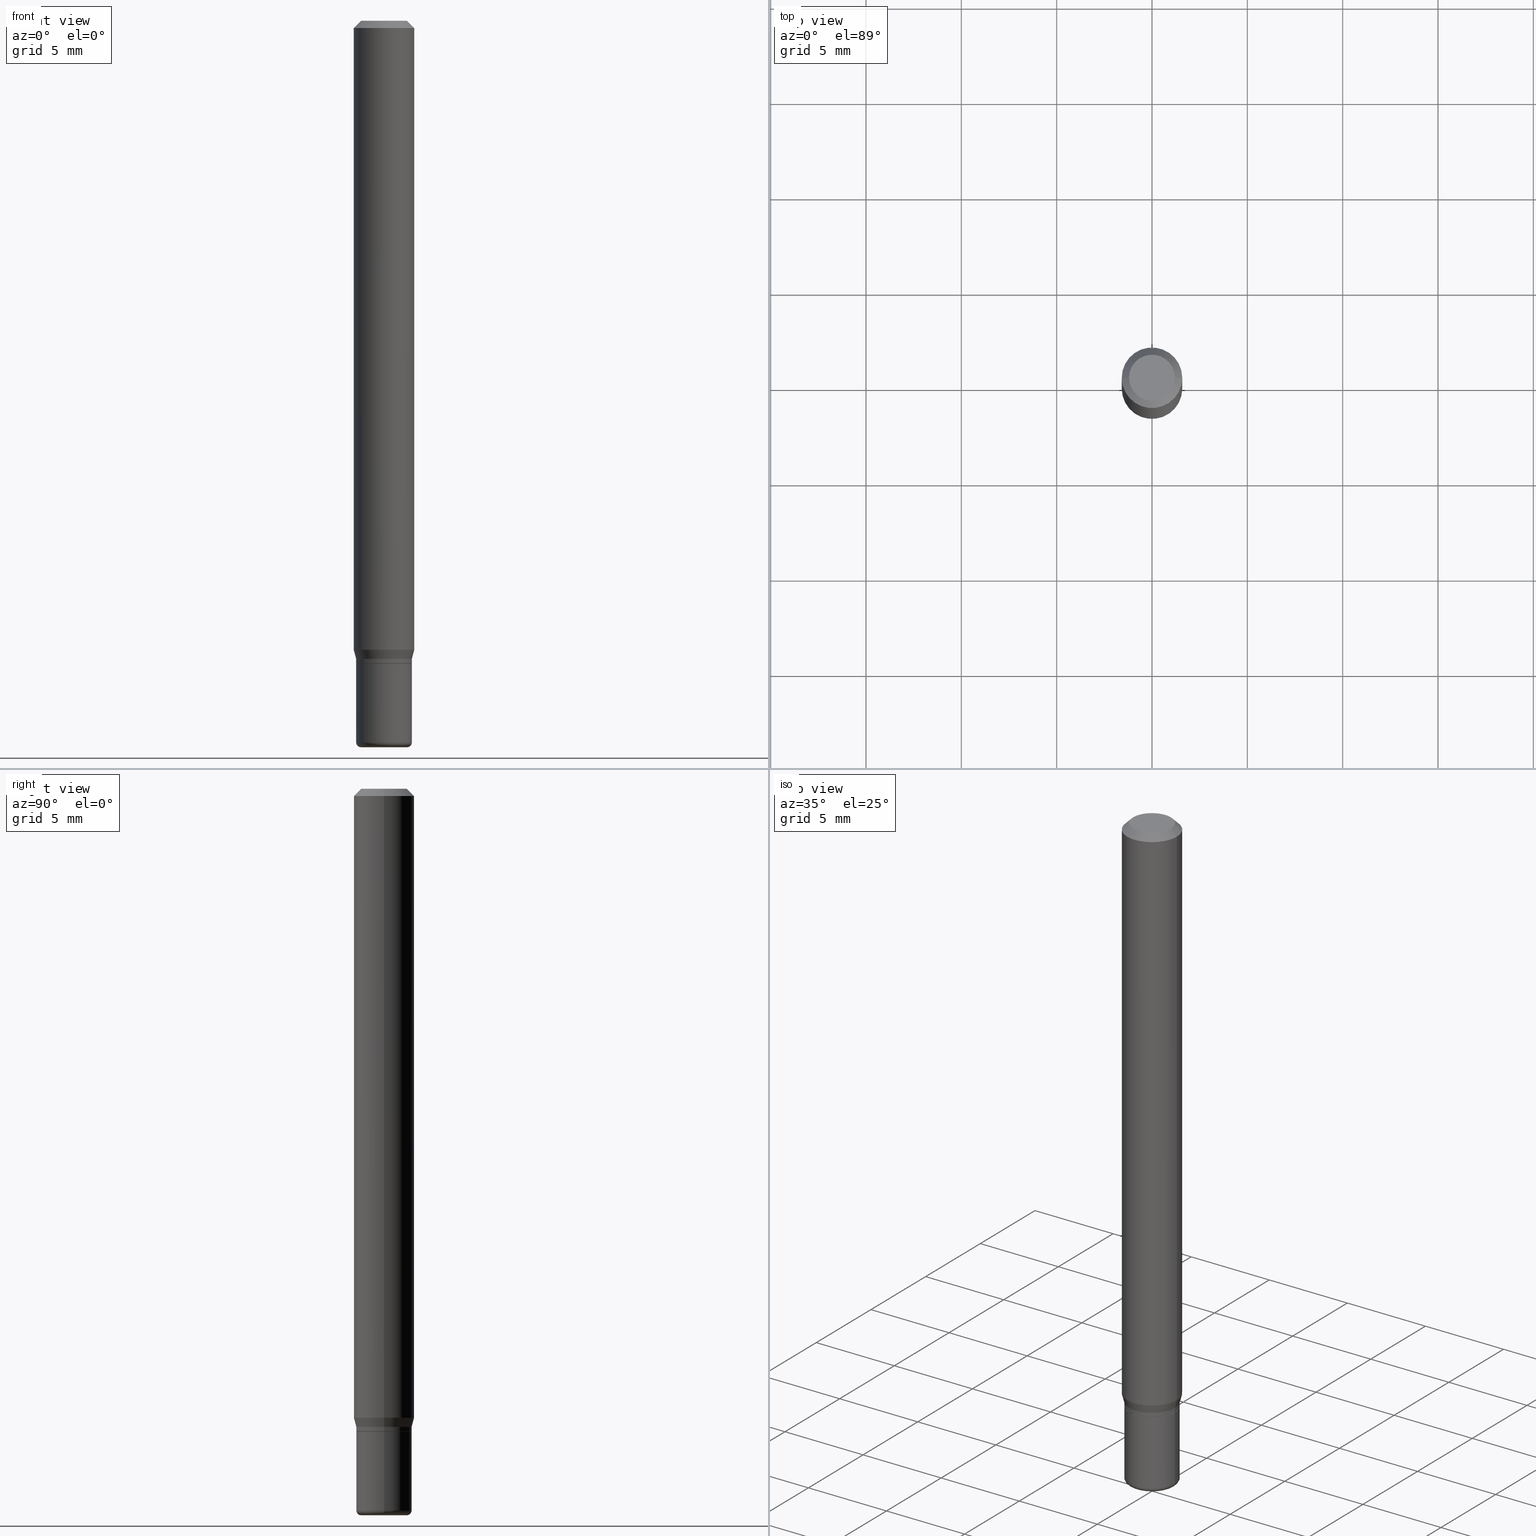
[diagram: canonical four-view strip — front | top / right | iso, engineering-drawing reading convention]
A machine part, canonical four-view strip (front | top / right | iso — engineering-drawing reading convention). The complete STEP part file that produces these views, byte-faithful:
ISO-10303-21;
HEADER;
FILE_DESCRIPTION (( 'STEP AP203' ),
    '1' );
FILE_NAME ('08623.STEP',
    '2024-02-29T20:02:24',
    ( '' ),
    ( '' ),
    'SwSTEP 2.0',
    'SolidWorks 2023',
    '' );
FILE_SCHEMA (( 'CONFIG_CONTROL_DESIGN' ));
ENDSEC;

DATA;
#1 = PERSON_AND_ORGANIZATION_ROLE ( 'design_owner' ) ;
#2 = ORIENTED_EDGE ( 'NONE', *, *, #140, .T. ) ;
#3 = VERTEX_POINT ( 'NONE', #512 ) ;
#4 = AXIS2_PLACEMENT_3D ( 'NONE', #78, #68, #231 ) ;
#5 = ADVANCED_FACE ( 'NONE', ( #477 ), #352, .T. ) ;
#6 = APPROVAL_STATUS ( 'not_yet_approved' ) ;
#7 = DIRECTION ( 'NONE',  ( 1.000000000000000000, -6.982962677686267499E-15, 4.876176775795935793E-29 ) ) ;
#8 = VERTEX_POINT ( 'NONE', #32 ) ;
#9 = LINE ( 'NONE', #213, #266 ) ;
#10 = CARTESIAN_POINT ( 'NONE',  ( 3.643748521215853910E-29, -5.202307194876288105E-15, -1.490000000000000213 ) ) ;
#11 = EDGE_CURVE ( 'NONE', #216, #417, #267, .T. ) ;
#12 = CIRCLE ( 'NONE', #255, 0.009999999999999944697 ) ;
#13 = CARTESIAN_POINT ( 'NONE',  ( 0.000000000000000000, 0.000000000000000000, 0.000000000000000000 ) ) ;
#14 = CYLINDRICAL_SURFACE ( 'NONE', #414, 0.05749999999999998168 ) ;
#15 = EDGE_LOOP ( 'NONE', ( #514, #148, #297, #413 ) ) ;
#16 = DIRECTION ( 'NONE',  ( -2.445468806185136597E-29, 3.491481338843145583E-15, 1.000000000000000000 ) ) ;
#17 = ORIENTED_EDGE ( 'NONE', *, *, #277, .T. ) ;
#18 = PRODUCT_DEFINITION_SHAPE ( 'NONE', 'NONE',  #74 ) ;
#19 = CARTESIAN_POINT ( 'NONE',  ( 3.246359840210769662E-29, -4.634941477314276569E-15, -1.327500000000000346 ) ) ;
#20 = DIRECTION ( 'NONE',  ( 1.000000000000000000, -6.982962677686262766E-15, 4.883557194083111780E-29 ) ) ;
#21 = DIRECTION ( 'NONE',  ( -2.445468806185136877E-29, 3.491481338843145188E-15, 1.000000000000000000 ) ) ;
#22 = VECTOR ( 'NONE', #114, 39.37007874015748143 ) ;
#23 = CARTESIAN_POINT ( 'NONE',  ( 0.04750000000000000749, -5.533997922066385616E-15, -1.490000000000000213 ) ) ;
#24 = EDGE_CURVE ( 'NONE', #37, #233, #169, .T. ) ;
#25 = CARTESIAN_POINT ( 'NONE',  ( -0.05699999999999997430, -4.229932117931019892E-15, -1.327500000000000346 ) ) ;
#26 = ORIENTED_EDGE ( 'NONE', *, *, #403, .F. ) ;
#27 = DIRECTION ( 'NONE',  ( -2.445468806185136597E-29, 3.491481338843145583E-15, 1.000000000000000000 ) ) ;
#28 = ORIENTED_EDGE ( 'NONE', *, *, #45, .F. ) ;
#29 = CARTESIAN_POINT ( 'NONE',  ( 0.05749999999999997474, -4.015203539669602175E-16, 2.803801646082662240E-30 ) ) ;
#30 = AXIS2_PLACEMENT_3D ( 'NONE', #92, #212, #56 ) ;
#31 = VECTOR ( 'NONE', #442, 39.37007874015748143 ) ;
#32 = CARTESIAN_POINT ( 'NONE',  ( 0.05749999999999997474, -5.034716090611815874E-15, -1.327000000000000401 ) ) ;
#33 = LOCAL_TIME ( 15, 2, 24.00000000000000000, #303 ) ;
#34 = AXIS2_PLACEMENT_3D ( 'NONE', #63, #222, #374 ) ;
#35 = DATE_AND_TIME ( #193, #248 ) ;
#36 = CARTESIAN_POINT ( 'NONE',  ( 0.000000000000000000, 0.000000000000000000, 0.000000000000000000 ) ) ;
#37 = VERTEX_POINT ( 'NONE', #312 ) ;
#38 = FACE_OUTER_BOUND ( 'NONE', #15, .T. ) ;
#39 = CARTESIAN_POINT ( 'NONE',  ( -0.04750000000000000749, -4.846729665296451395E-15, -1.500000000000000222 ) ) ;
#40 = ORIENTED_EDGE ( 'NONE', *, *, #229, .F. ) ;
#41 = EDGE_CURVE ( 'NONE', #417, #216, #324, .T. ) ;
#42 = APPROVAL_ROLE ( '' ) ;
#43 = APPROVAL_ROLE ( '' ) ;
#44 = EDGE_LOOP ( 'NONE', ( #502, #188, #144, #240 ) ) ;
#45 = EDGE_CURVE ( 'NONE', #272, #402, #318, .T. ) ;
#46 = CLOSED_SHELL ( 'NONE', ( #448, #426, #5, #359, #377, #81, #495, #237, #406, #70, #127, #109 ) ) ;
#47 = EDGE_CURVE ( 'NONE', #219, #233, #440, .T. ) ;
#48 = FACE_OUTER_BOUND ( 'NONE', #66, .T. ) ;
#49 = COORDINATED_UNIVERSAL_TIME_OFFSET ( 5, 0, .BEHIND. ) ;
#50 = EDGE_LOOP ( 'NONE', ( #64, #17, #457, #333 ) ) ;
#51 = CYLINDRICAL_SURFACE ( 'NONE', #486, 0.06250000000000000000 ) ;
#52 = PRODUCT ( '08623', '08623', '', ( #271 ) ) ;
#53 = EDGE_LOOP ( 'NONE', ( #95, #366, #291, #425 ) ) ;
#54 = DIRECTION ( 'NONE',  ( 1.000000000000000000, -6.982962677686274599E-15, 0.000000000000000000 ) ) ;
#55 = DIRECTION ( 'NONE',  ( -1.000000000000000000, 7.105427357600964782E-15, 0.000000000000000000 ) ) ;
#56 = DIRECTION ( 'NONE',  ( 1.000000000000000000, -6.982962677686266711E-15, 0.000000000000000000 ) ) ;
#57 = ORIENTED_EDGE ( 'NONE', *, *, #143, .T. ) ;
#58 = VECTOR ( 'NONE', #199, 39.37007874015748143 ) ;
#59 = VECTOR ( 'NONE', #21, 39.37007874015748143 ) ;
#60 = DIRECTION ( 'NONE',  ( 1.000000000000000000, -6.982962677686268288E-15, 0.000000000000000000 ) ) ;
#61 = EDGE_LOOP ( 'NONE', ( #487, #2, #394, #445 ) ) ;
#62 = DIRECTION ( 'NONE',  ( -2.445468806185136597E-29, 3.491481338843145583E-15, 1.000000000000000000 ) ) ;
#63 = CARTESIAN_POINT ( 'NONE',  ( 3.246359840210769662E-29, -4.634941477314276569E-15, -1.327500000000000346 ) ) ;
#64 = ORIENTED_EDGE ( 'NONE', *, *, #195, .T. ) ;
#65 = CARTESIAN_POINT ( 'NONE',  ( 3.245137105807677421E-29, -4.633195736644855065E-15, -1.327000000000000401 ) ) ;
#66 = EDGE_LOOP ( 'NONE', ( #473, #500, #139, #257 ) ) ;
#67 = CIRCLE ( 'NONE', #422, 0.05749999999999997474 ) ;
#68 = DIRECTION ( 'NONE',  ( 2.445468806185136597E-29, -3.491481338843145583E-15, -1.000000000000000000 ) ) ;
#69 = ORIENTED_EDGE ( 'NONE', *, *, #180, .F. ) ;
#70 = ADVANCED_FACE ( 'NONE', ( #362 ), #182, .F. ) ;
#71 = CALENDAR_DATE ( 2024, 29, 2 ) ;
#72 = DIRECTION ( 'NONE',  ( -2.445468806185136877E-29, 3.491481338843145188E-15, 1.000000000000000000 ) ) ;
#73 = ORIENTED_EDGE ( 'NONE', *, *, #285, .T. ) ;
#74 = PRODUCT_DEFINITION ( 'UNKNOWN', '', #517, #453 ) ;
#75 = CYLINDRICAL_SURFACE ( 'NONE', #275, 0.05749999999999997474 ) ;
#76 = DIRECTION ( 'NONE',  ( 1.000000000000000000, -6.982962677686262766E-15, 4.883557194083111780E-29 ) ) ;
#77 = AXIS2_PLACEMENT_3D ( 'NONE', #159, #396, #437 ) ;
#78 = CARTESIAN_POINT ( 'NONE',  ( 3.668203209277632395E-31, -5.237222008264614861E-17, -0.01499999999999970281 ) ) ;
#79 = COORDINATED_UNIVERSAL_TIME_OFFSET ( 5, 0, .BEHIND. ) ;
#80 = DIRECTION ( 'NONE',  ( -2.445468806185136597E-29, 3.491481338843145583E-15, 1.000000000000000000 ) ) ;
#81 = ADVANCED_FACE ( 'NONE', ( #409 ), #214, .T. ) ;
#82 = DIRECTION ( 'NONE',  ( -2.445468806185136597E-29, 3.491481338843145583E-15, 1.000000000000000000 ) ) ;
#83 = EDGE_CURVE ( 'NONE', #128, #246, #508, .T. ) ;
#84 = CALENDAR_DATE ( 2024, 29, 2 ) ;
#85 = VERTEX_POINT ( 'NONE', #337 ) ;
#86 = ADVANCED_FACE ( 'NONE', ( #331 ), #458, .T. ) ;
#87 = DATE_TIME_ROLE ( 'classification_date' ) ;
#88 = ORIENTED_EDGE ( 'NONE', *, *, #47, .T. ) ;
#89 = DIRECTION ( 'NONE',  ( 7.105427357601001859E-15, 1.000000000000000000, -3.491481338843145583E-15 ) ) ;
#90 = CIRCLE ( 'NONE', #185, 0.04750000000000000749 ) ;
#91 = DIRECTION ( 'NONE',  ( -2.438088387897960049E-29, 3.491481338843145188E-15, 1.000000000000000000 ) ) ;
#92 = CARTESIAN_POINT ( 'NONE',  ( 3.668203209277632395E-31, -5.237222008264614861E-17, -0.01499999999999970281 ) ) ;
#93 = PERSON_AND_ORGANIZATION ( #204, #201 ) ;
#94 = DIRECTION ( 'NONE',  ( 2.438088387897960049E-29, -3.491481338843145188E-15, -1.000000000000000000 ) ) ;
#95 = ORIENTED_EDGE ( 'NONE', *, *, #100, .T. ) ;
#96 = CARTESIAN_POINT ( 'NONE',  ( -0.04750000000000000749, -4.864799395390240612E-15, -1.490000000000000213 ) ) ;
#97 = ORIENTED_EDGE ( 'NONE', *, *, #292, .T. ) ;
#98 = AXIS2_PLACEMENT_3D ( 'NONE', #155, #441, #395 ) ;
#99 = DIRECTION ( 'NONE',  ( -2.445468806185136597E-29, 3.491481338843145583E-15, 1.000000000000000000 ) ) ;
#100 = EDGE_CURVE ( 'NONE', #420, #294, #153, .T. ) ;
#101 = CARTESIAN_POINT ( 'NONE',  ( 0.05749999999999999556, -5.001547017892805729E-15, -1.317500000000000115 ) ) ;
#102 =( LENGTH_UNIT ( ) NAMED_UNIT ( * ) SI_UNIT ( $, .METRE. ) );
#103 = ORIENTED_EDGE ( 'NONE', *, *, #503, .F. ) ;
#104 = CARTESIAN_POINT ( 'NONE',  ( -0.05750000000000000250, -4.510062263033223973E-15, -1.327500000000000346 ) ) ;
#105 = DIRECTION ( 'NONE',  ( -2.445468806185136597E-29, 3.491481338843145583E-15, 1.000000000000000000 ) ) ;
#106 = EDGE_LOOP ( 'NONE', ( #69, #226 ) ) ;
#107 = DIRECTION ( 'NONE',  ( -0.7071067811866199593, 7.493145998870616062E-15, 0.7071067811864750752 ) ) ;
#108 = AXIS2_PLACEMENT_3D ( 'NONE', #187, #345, #387 ) ;
#109 = ADVANCED_FACE ( 'NONE', ( #379 ), #14, .T. ) ;
#110 = ORIENTED_EDGE ( 'NONE', *, *, #24, .F. ) ;
#111 = EDGE_CURVE ( 'NONE', #272, #8, #348, .T. ) ;
#112 = CC_DESIGN_PERSON_AND_ORGANIZATION_ASSIGNMENT ( #93, #518, ( #517 ) ) ;
#113 = DATE_TIME_ROLE ( 'creation_date' ) ;
#114 = DIRECTION ( 'NONE',  ( -2.445468806185136877E-29, 3.491481338843145188E-15, 1.000000000000000000 ) ) ;
#115 = CARTESIAN_POINT ( 'NONE',  ( 3.246359840210769662E-29, -4.634941477314276569E-15, -1.327500000000000346 ) ) ;
#116 = APPROVAL_STATUS ( 'not_yet_approved' ) ;
#117 = CARTESIAN_POINT ( 'NONE',  ( -6.680649051745406845E-45, 9.538196290434862081E-31, 2.731847993664263218E-16 ) ) ;
#118 = DIRECTION ( 'NONE',  ( 1.000000000000000000, -6.982962677686274599E-15, 0.000000000000000000 ) ) ;
#119 = CIRCLE ( 'NONE', #77, 0.05749999999999994699 ) ;
#120 = CONICAL_SURFACE ( 'NONE', #108, 0.06250000000000000000, 0.7853981633974488341 ) ;
#121 = CARTESIAN_POINT ( 'NONE',  ( -0.05749999999999998168, 4.085620730620574767E-16, -2.828387676896570012E-30 ) ) ;
#122 = DIRECTION ( 'NONE',  ( 1.000000000000000000, 0.000000000000000000, 0.000000000000000000 ) ) ;
#123 = APPROVAL_ROLE ( '' ) ;
#124 = ORIENTED_EDGE ( 'NONE', *, *, #24, .T. ) ;
#125 = ADVANCED_FACE ( 'NONE', ( #310 ), #391, .T. ) ;
#126 = CONICAL_SURFACE ( 'NONE', #405, 0.05699999999999997430, 0.7853981633975507526 ) ;
#127 = ADVANCED_FACE ( 'NONE', ( #384 ), #126, .T. ) ;
#128 = VERTEX_POINT ( 'NONE', #470 ) ;
#129 = CARTESIAN_POINT ( 'NONE',  ( 3.221905152148917556E-29, -4.600026663925844919E-15, -1.317500000000000115 ) ) ;
#130 = SECURITY_CLASSIFICATION_LEVEL ( 'unclassified' ) ;
#131 = FACE_OUTER_BOUND ( 'NONE', #106, .T. ) ;
#132 = DIRECTION ( 'NONE',  ( -2.445468806185136597E-29, 3.491481338843145583E-15, 1.000000000000000000 ) ) ;
#133 = ORIENTED_EDGE ( 'NONE', *, *, #334, .F. ) ;
#134 = CIRCLE ( 'NONE', #392, 0.04750000000000000749 ) ;
#135 = FACE_OUTER_BOUND ( 'NONE', #274, .T. ) ;
#136 = PLANE ( 'NONE',  #162 ) ;
#137 = DIRECTION ( 'NONE',  ( 1.000000000000000000, -6.982962677686274599E-15, 0.000000000000000000 ) ) ;
#138 = DIRECTION ( 'NONE',  ( -2.445468806185136597E-29, 3.491481338843145583E-15, 1.000000000000000000 ) ) ;
#139 = ORIENTED_EDGE ( 'NONE', *, *, #170, .F. ) ;
#140 = EDGE_CURVE ( 'NONE', #402, #37, #239, .T. ) ;
#141 = VECTOR ( 'NONE', #72, 39.37007874015748143 ) ;
#142 = ORIENTED_EDGE ( 'NONE', *, *, #143, .F. ) ;
#143 = EDGE_CURVE ( 'NONE', #338, #404, #343, .T. ) ;
#144 = ORIENTED_EDGE ( 'NONE', *, *, #484, .F. ) ;
#145 = PERSON_AND_ORGANIZATION ( #204, #201 ) ;
#146 = DIRECTION ( 'NONE',  ( -2.445468806185136877E-29, 3.491481338843145188E-15, 1.000000000000000000 ) ) ;
#147 = EDGE_CURVE ( 'NONE', #85, #154, #12, .T. ) ;
#148 = ORIENTED_EDGE ( 'NONE', *, *, #253, .T. ) ;
#149 = VECTOR ( 'NONE', #281, 39.37007874015748143 ) ;
#150 = LINE ( 'NONE', #504, #451 ) ;
#151 = AXIS2_PLACEMENT_3D ( 'NONE', #211, #369, #339 ) ;
#152 = DIRECTION ( 'NONE',  ( 1.000000000000000000, -6.982962677686266711E-15, 4.852736867747365086E-29 ) ) ;
#153 = CIRCLE ( 'NONE', #34, 0.05699999999999997430 ) ;
#154 = VERTEX_POINT ( 'NONE', #244 ) ;
#155 = CARTESIAN_POINT ( 'NONE',  ( 0.000000000000000000, 0.000000000000000000, 0.000000000000000000 ) ) ;
#156 = CARTESIAN_POINT ( 'NONE',  ( 0.06250000000000000000, -4.971309902530030685E-15, -1.298839745962155678 ) ) ;
#157 = CARTESIAN_POINT ( 'NONE',  ( 3.643748521215853910E-29, -5.202307194876288105E-15, -1.490000000000000213 ) ) ;
#158 =( NAMED_UNIT ( * ) PLANE_ANGLE_UNIT ( ) SI_UNIT ( $, .RADIAN. ) );
#159 = CARTESIAN_POINT ( 'NONE',  ( 3.643748521215853910E-29, -5.202307194876288105E-15, -1.490000000000000213 ) ) ;
#160 = MANIFOLD_SOLID_BREP ( 'Body-Move/Copy2[2]', #46 ) ;
#161 = DIRECTION ( 'NONE',  ( -2.445468806185136597E-29, 3.491481338843145583E-15, 1.000000000000000000 ) ) ;
#162 = AXIS2_PLACEMENT_3D ( 'NONE', #488, #94, #258 ) ;
#163 = APPLICATION_CONTEXT ( 'configuration controlled 3d designs of mechanical parts and assemblies' ) ;
#164 = COORDINATED_UNIVERSAL_TIME_OFFSET ( 5, 0, .BEHIND. ) ;
#165 = PERSON_AND_ORGANIZATION ( #204, #201 ) ;
#166 = VERTEX_POINT ( 'NONE', #39 ) ;
#167 = CIRCLE ( 'NONE', #280, 0.06250000000000000000 ) ;
#168 =( GEOMETRIC_REPRESENTATION_CONTEXT ( 3 ) GLOBAL_UNCERTAINTY_ASSIGNED_CONTEXT ( ( #386 ) ) GLOBAL_UNIT_ASSIGNED_CONTEXT ( ( #351, #158, #321 ) ) REPRESENTATION_CONTEXT ( 'NONE', 'WORKASPACE' ) );
#169 = CIRCLE ( 'NONE', #264, 0.06250000000000000000 ) ;
#170 = EDGE_CURVE ( 'NONE', #219, #402, #349, .T. ) ;
#171 = DIRECTION ( 'NONE',  ( 0.7071067811866199593, -2.468850131083015945E-15, 0.7071067811864750752 ) ) ;
#172 = EDGE_LOOP ( 'NONE', ( #485, #365, #88, #110 ) ) ;
#173 = PLANE ( 'NONE',  #381 ) ;
#174 = DIRECTION ( 'NONE',  ( -2.445468806185136597E-29, 3.491481338843145583E-15, 1.000000000000000000 ) ) ;
#175 = ORIENTED_EDGE ( 'NONE', *, *, #11, .F. ) ;
#176 = AXIS2_PLACEMENT_3D ( 'NONE', #439, #357, #152 ) ;
#177 = DIRECTION ( 'NONE',  ( 1.000000000000000000, -6.982962677686266711E-15, 4.876176775795935793E-29 ) ) ;
#178 = DIRECTION ( 'NONE',  ( -2.445468806185136597E-29, 3.491481338843145583E-15, 1.000000000000000000 ) ) ;
#179 = EDGE_LOOP ( 'NONE', ( #196, #97, #466, #175 ) ) ;
#180 = EDGE_CURVE ( 'NONE', #85, #166, #90, .T. ) ;
#181 = DIRECTION ( 'NONE',  ( 1.000000000000000000, -6.982962677686263555E-15, 0.000000000000000000 ) ) ;
#182 = PLANE ( 'NONE',  #309 ) ;
#183 = EDGE_LOOP ( 'NONE', ( #28, #300, #250, #494 ) ) ;
#184 = CARTESIAN_POINT ( 'NONE',  ( 0.04750000000000000749, -4.035134999187568762E-16, 2.731847993664288856E-16 ) ) ;
#185 = AXIS2_PLACEMENT_3D ( 'NONE', #261, #356, #302 ) ;
#186 = CC_DESIGN_APPROVAL ( #328, ( #209 ) ) ;
#187 = CARTESIAN_POINT ( 'NONE',  ( 3.668203209277632395E-31, -5.237222008264614861E-17, -0.01499999999999970281 ) ) ;
#188 = ORIENTED_EDGE ( 'NONE', *, *, #438, .T. ) ;
#189 = CARTESIAN_POINT ( 'NONE',  ( 3.176272082983878973E-29, -4.534874735174638227E-15, -1.298839745962155678 ) ) ;
#190 = AXIS2_PLACEMENT_3D ( 'NONE', #65, #132, #465 ) ;
#191 = CIRCLE ( 'NONE', #367, 0.05699999999999997430 ) ;
#192 = ORIENTED_EDGE ( 'NONE', *, *, #83, .F. ) ;
#193 = CALENDAR_DATE ( 2024, 29, 2 ) ;
#194 = CARTESIAN_POINT ( 'NONE',  ( -0.05749999999999999556, -4.191464590863787344E-15, -1.317500000000000115 ) ) ;
#195 = EDGE_CURVE ( 'NONE', #233, #37, #363, .T. ) ;
#196 = ORIENTED_EDGE ( 'NONE', *, *, #253, .F. ) ;
#197 = CYLINDRICAL_SURFACE ( 'NONE', #227, 0.05749999999999997474 ) ;
#198 = DIRECTION ( 'NONE',  ( -2.445468806185136597E-29, 3.491481338843145583E-15, 1.000000000000000000 ) ) ;
#199 = DIRECTION ( 'NONE',  ( 0.2588190451025199623, 1.565188264969633209E-15, 0.9659258262890685343 ) ) ;
#200 = AXIS2_PLACEMENT_3D ( 'NONE', #497, #91, #408 ) ;
#201 = ORGANIZATION ( 'UNSPECIFIED', 'UNSPECIFIED', '' ) ;
#202 = CARTESIAN_POINT ( 'NONE',  ( -0.06250000000000000000, 3.840629472727455270E-16, -0.01499999999999970281 ) ) ;
#203 = EDGE_LOOP ( 'NONE', ( #380, #133 ) ) ;
#204 = PERSON ( 'UNSPECIFIED', 'UNSPECIFIED', 'UNSPECIFIED', ('UNSPECIFIED'), ('UNSPECIFIED'), ('UNSPECIFIED') ) ;
#205 = ORIENTED_EDGE ( 'NONE', *, *, #385, .T. ) ;
#206 = CARTESIAN_POINT ( 'NONE',  ( 3.221905152148917556E-29, -4.600026663925844919E-15, -1.317500000000000115 ) ) ;
#207 = AXIS2_PLACEMENT_3D ( 'NONE', #10, #174, #20 ) ;
#208 = VECTOR ( 'NONE', #107, 39.37007874015748143 ) ;
#209 = SECURITY_CLASSIFICATION ( '', '', #130 ) ;
#210 = CARTESIAN_POINT ( 'NONE',  ( 3.316907271900976589E-16, 0.04750000000000000749, -2.925296391183627249E-17 ) ) ;
#211 = CARTESIAN_POINT ( 'NONE',  ( 3.668203209277704895E-29, -5.237222008264718177E-15, -1.500000000000000222 ) ) ;
#212 = DIRECTION ( 'NONE',  ( -2.445468806185136597E-29, 3.491481338843145583E-15, 1.000000000000000000 ) ) ;
#213 = CARTESIAN_POINT ( 'NONE',  ( 0.06250000000000000000, -4.811533449433669144E-16, -0.01499999999999970281 ) ) ;
#214 = CONICAL_SURFACE ( 'NONE', #283, 0.05749999999999999556, 0.2617993877991485197 ) ;
#215 = SHAPE_DEFINITION_REPRESENTATION ( #18, #259 ) ;
#216 = VERTEX_POINT ( 'NONE', #104 ) ;
#217 = AXIS2_PLACEMENT_3D ( 'NONE', #262, #16, #181 ) ;
#218 = DIRECTION ( 'NONE',  ( 2.438088387897960049E-29, -3.491481338843145188E-15, -1.000000000000000000 ) ) ;
#219 = VERTEX_POINT ( 'NONE', #101 ) ;
#220 = CC_DESIGN_DATE_AND_TIME_ASSIGNMENT ( #35, #113, ( #74 ) ) ;
#221 = CARTESIAN_POINT ( 'NONE',  ( 3.246359840210769662E-29, -4.634941477314276569E-15, -1.327500000000000346 ) ) ;
#222 = DIRECTION ( 'NONE',  ( -2.445468806185136597E-29, 3.491481338843145583E-15, 1.000000000000000000 ) ) ;
#223 = CC_DESIGN_PERSON_AND_ORGANIZATION_ASSIGNMENT ( #145, #515, ( #517 ) ) ;
#224 = DIRECTION ( 'NONE',  ( -0.2588190451025199623, 5.211531920934541575E-15, 0.9659258262890685343 ) ) ;
#225 = EDGE_CURVE ( 'NONE', #8, #219, #276, .T. ) ;
#226 = ORIENTED_EDGE ( 'NONE', *, *, #385, .F. ) ;
#227 = AXIS2_PLACEMENT_3D ( 'NONE', #361, #295, #293 ) ;
#228 = DIRECTION ( 'NONE',  ( 1.000000000000000000, -6.982962677686268288E-15, 0.000000000000000000 ) ) ;
#229 = EDGE_CURVE ( 'NONE', #294, #272, #273, .T. ) ;
#230 = DIRECTION ( 'NONE',  ( 1.000000000000000000, -6.982962677686262766E-15, 0.000000000000000000 ) ) ;
#231 = DIRECTION ( 'NONE',  ( -1.000000000000000000, 6.982962677686266711E-15, 0.000000000000000000 ) ) ;
#232 = DATE_AND_TIME ( #71, #33 ) ;
#233 = VERTEX_POINT ( 'NONE', #156 ) ;
#234 = AXIS2_PLACEMENT_3D ( 'NONE', #157, #507, #76 ) ;
#235 = COORDINATED_UNIVERSAL_TIME_OFFSET ( 5, 0, .BEHIND. ) ;
#236 = CARTESIAN_POINT ( 'NONE',  ( 0.05749999999999998168, -4.015203539669602668E-16, 2.803801646082662240E-30 ) ) ;
#237 = ADVANCED_FACE ( 'NONE', ( #308 ), #120, .T. ) ;
#238 = VECTOR ( 'NONE', #383, 39.37007874015748143 ) ;
#239 = LINE ( 'NONE', #194, #491 ) ;
#240 = ORIENTED_EDGE ( 'NONE', *, *, #147, .F. ) ;
#241 = FACE_OUTER_BOUND ( 'NONE', #410, .T. ) ;
#242 = DIRECTION ( 'NONE',  ( 1.000000000000000000, -6.982962677686266711E-15, 4.852736867747365086E-29 ) ) ;
#243 = DIRECTION ( 'NONE',  ( -2.445468806185136597E-29, 3.491481338843145583E-15, 1.000000000000000000 ) ) ;
#244 = CARTESIAN_POINT ( 'NONE',  ( 0.05749999999999994699, -5.603827548843247337E-15, -1.490000000000000213 ) ) ;
#245 = EDGE_CURVE ( 'NONE', #154, #417, #393, .T. ) ;
#246 = VERTEX_POINT ( 'NONE', #344 ) ;
#247 = DIRECTION ( 'NONE',  ( 1.000000000000000000, -6.982962677686266711E-15, 0.000000000000000000 ) ) ;
#248 = LOCAL_TIME ( 15, 2, 24.00000000000000000, #79 ) ;
#249 = AXIS2_PLACEMENT_3D ( 'NONE', #388, #82, #358 ) ;
#250 = ORIENTED_EDGE ( 'NONE', *, *, #225, .T. ) ;
#251 = EDGE_LOOP ( 'NONE', ( #428, #305, #399, #103 ) ) ;
#252 = APPROVAL_DATE_TIME ( #446, #328 ) ;
#253 = EDGE_CURVE ( 'NONE', #3, #216, #150, .T. ) ;
#254 = CARTESIAN_POINT ( 'NONE',  ( -0.04750000000000000749, 3.578768372314221353E-16, 2.731847993664239060E-16 ) ) ;
#255 = AXIS2_PLACEMENT_3D ( 'NONE', #23, #513, #118 ) ;
#256 = CARTESIAN_POINT ( 'NONE',  ( 3.245137105807677421E-29, -4.633195736644855065E-15, -1.327000000000000401 ) ) ;
#257 = ORIENTED_EDGE ( 'NONE', *, *, #225, .F. ) ;
#258 = DIRECTION ( 'NONE',  ( -1.000000000000000000, 6.982962677686265922E-15, -4.876176775795935793E-29 ) ) ;
#259 = ADVANCED_BREP_SHAPE_REPRESENTATION ( '08623', ( #329, #160, #375 ), #168 ) ;
#260 = EDGE_CURVE ( 'NONE', #233, #246, #427, .T. ) ;
#261 = CARTESIAN_POINT ( 'NONE',  ( 3.668203209277704895E-29, -5.237222008264718177E-15, -1.500000000000000222 ) ) ;
#262 = CARTESIAN_POINT ( 'NONE',  ( 3.643748521215853910E-29, -5.202307194876288105E-15, -1.490000000000000213 ) ) ;
#263 = DIRECTION ( 'NONE',  ( -2.438088387897960049E-29, 3.491481338843145188E-15, 1.000000000000000000 ) ) ;
#264 = AXIS2_PLACEMENT_3D ( 'NONE', #347, #243, #509 ) ;
#265 = EDGE_LOOP ( 'NONE', ( #26, #142, #447, #505 ) ) ;
#266 = VECTOR ( 'NONE', #415, 39.37007874015748143 ) ;
#267 = CIRCLE ( 'NONE', #249, 0.05750000000000000250 ) ;
#268 = CC_DESIGN_DATE_AND_TIME_ASSIGNMENT ( #481, #87, ( #209 ) ) ;
#269 = DIRECTION ( 'NONE',  ( -1.000000000000000000, 6.982962677686265922E-15, -4.876176775795935793E-29 ) ) ;
#270 = ORIENTED_EDGE ( 'NONE', *, *, #277, .F. ) ;
#271 = MECHANICAL_CONTEXT ( 'NONE', #163, 'mechanical' ) ;
#272 = VERTEX_POINT ( 'NONE', #390 ) ;
#273 = LINE ( 'NONE', #25, #208 ) ;
#274 = EDGE_LOOP ( 'NONE', ( #322, #423 ) ) ;
#275 = AXIS2_PLACEMENT_3D ( 'NONE', #36, #80, #317 ) ;
#276 = LINE ( 'NONE', #236, #238 ) ;
#277 = EDGE_CURVE ( 'NONE', #37, #128, #314, .T. ) ;
#278 = PERSON_AND_ORGANIZATION ( #204, #201 ) ;
#279 = DIRECTION ( 'NONE',  ( -2.445468806185136597E-29, 3.491481338843145583E-15, 1.000000000000000000 ) ) ;
#280 = AXIS2_PLACEMENT_3D ( 'NONE', #482, #436, #247 ) ;
#281 = DIRECTION ( 'NONE',  ( -2.445468806185136877E-29, 3.491481338843145188E-15, 1.000000000000000000 ) ) ;
#282 = ADVANCED_FACE ( 'NONE', ( #430 ), #75, .T. ) ;
#283 = AXIS2_PLACEMENT_3D ( 'NONE', #498, #138, #299 ) ;
#284 = EDGE_LOOP ( 'NONE', ( #323, #205, #462, #327 ) ) ;
#285 = EDGE_CURVE ( 'NONE', #404, #338, #134, .T. ) ;
#286 = FACE_OUTER_BOUND ( 'NONE', #371, .T. ) ;
#287 = CALENDAR_DATE ( 2024, 29, 2 ) ;
#288 = DIRECTION ( 'NONE',  ( -2.445468806185136597E-29, 3.491481338843145583E-15, 1.000000000000000000 ) ) ;
#289 = CIRCLE ( 'NONE', #336, 0.05749999999999999556 ) ;
#290 = PERSON_AND_ORGANIZATION ( #204, #201 ) ;
#291 = ORIENTED_EDGE ( 'NONE', *, *, #326, .F. ) ;
#292 = EDGE_CURVE ( 'NONE', #3, #154, #119, .T. ) ;
#293 = DIRECTION ( 'NONE',  ( 1.000000000000000000, -6.982962677686267499E-15, 4.876176775795936353E-29 ) ) ;
#294 = VERTEX_POINT ( 'NONE', #475 ) ;
#295 = DIRECTION ( 'NONE',  ( -2.445468806185136597E-29, 3.491481338843145583E-15, 1.000000000000000000 ) ) ;
#296 = ADVANCED_FACE ( 'NONE', ( #38 ), #197, .T. ) ;
#297 = ORIENTED_EDGE ( 'NONE', *, *, #41, .F. ) ;
#298 = DIRECTION ( 'NONE',  ( -2.445468806185136597E-29, 3.491481338843145583E-15, 1.000000000000000000 ) ) ;
#299 = DIRECTION ( 'NONE',  ( 1.000000000000000000, -6.982962677686274599E-15, 0.000000000000000000 ) ) ;
#300 = ORIENTED_EDGE ( 'NONE', *, *, #111, .T. ) ;
#301 = CC_DESIGN_APPROVAL ( #499, ( #74 ) ) ;
#302 = DIRECTION ( 'NONE',  ( 1.000000000000000000, -6.982962677686260400E-15, 0.000000000000000000 ) ) ;
#303 = COORDINATED_UNIVERSAL_TIME_OFFSET ( 5, 0, .BEHIND. ) ;
#304 = DIRECTION ( 'NONE',  ( 1.000000000000000000, -6.982962677686267499E-15, 4.876176775795935793E-29 ) ) ;
#305 = ORIENTED_EDGE ( 'NONE', *, *, #403, .T. ) ;
#306 = EDGE_LOOP ( 'NONE', ( #40, #454, #464, #490 ) ) ;
#307 = APPROVAL_PERSON_ORGANIZATION ( #474, #342, #43 ) ;
#308 = FACE_OUTER_BOUND ( 'NONE', #265, .T. ) ;
#309 = AXIS2_PLACEMENT_3D ( 'NONE', #412, #263, #493 ) ;
#310 = FACE_OUTER_BOUND ( 'NONE', #44, .T. ) ;
#311 = EDGE_CURVE ( 'NONE', #420, #8, #376, .T. ) ;
#312 = CARTESIAN_POINT ( 'NONE',  ( -0.06250000000000000000, -4.090785525324575611E-15, -1.298839745962155678 ) ) ;
#313 = DATE_AND_TIME ( #84, #435 ) ;
#314 = LINE ( 'NONE', #472, #22 ) ;
#315 = CC_DESIGN_PERSON_AND_ORGANIZATION_ASSIGNMENT ( #278, #471, ( #74 ) ) ;
#316 = APPLICATION_PROTOCOL_DEFINITION ( 'international standard', 'config_control_design', 1994, #433 ) ;
#317 = DIRECTION ( 'NONE',  ( 1.000000000000000000, -6.982962677686267499E-15, 4.876176775795936353E-29 ) ) ;
#318 = LINE ( 'NONE', #121, #149 ) ;
#319 = EDGE_CURVE ( 'NONE', #402, #219, #289, .T. ) ;
#320 = CONICAL_SURFACE ( 'NONE', #400, 0.05749999999999999556, 0.2617993877991485197 ) ;
#321 =( NAMED_UNIT ( * ) SI_UNIT ( $, .STERADIAN. ) SOLID_ANGLE_UNIT ( ) );
#322 = ORIENTED_EDGE ( 'NONE', *, *, #41, .T. ) ;
#323 = ORIENTED_EDGE ( 'NONE', *, *, #438, .F. ) ;
#324 = CIRCLE ( 'NONE', #432, 0.05750000000000000250 ) ;
#325 = AXIS2_PLACEMENT_3D ( 'NONE', #96, #89, #55 ) ;
#326 = EDGE_CURVE ( 'NONE', #8, #272, #67, .T. ) ;
#327 = ORIENTED_EDGE ( 'NONE', *, *, #292, .F. ) ;
#328 = APPROVAL ( #6, 'UNSPECIFIED' ) ;
#329 = MANIFOLD_SOLID_BREP ( 'Body-Move/Copy2[1]', #418 ) ;
#330 = CARTESIAN_POINT ( 'NONE',  ( 0.05699999999999997430, -5.032970349942393582E-15, -1.327500000000000346 ) ) ;
#331 = FACE_OUTER_BOUND ( 'NONE', #284, .T. ) ;
#332 = PERSON_AND_ORGANIZATION ( #204, #201 ) ;
#333 = ORIENTED_EDGE ( 'NONE', *, *, #260, .F. ) ;
#334 = EDGE_CURVE ( 'NONE', #294, #420, #191, .T. ) ;
#335 = CYLINDRICAL_SURFACE ( 'NONE', #501, 0.05749999999999998168 ) ;
#336 = AXIS2_PLACEMENT_3D ( 'NONE', #459, #288, #340 ) ;
#337 = CARTESIAN_POINT ( 'NONE',  ( 0.04750000000000000749, -5.568912735454815688E-15, -1.500000000000000222 ) ) ;
#338 = VERTEX_POINT ( 'NONE', #254 ) ;
#339 = DIRECTION ( 'NONE',  ( 1.000000000000000000, -6.982962677686260400E-15, 0.000000000000000000 ) ) ;
#340 = DIRECTION ( 'NONE',  ( 1.000000000000000000, -6.982962677686274599E-15, 0.000000000000000000 ) ) ;
#341 = FACE_OUTER_BOUND ( 'NONE', #50, .T. ) ;
#342 = APPROVAL ( #401, 'UNSPECIFIED' ) ;
#343 = CIRCLE ( 'NONE', #176, 0.04750000000000000749 ) ;
#344 = CARTESIAN_POINT ( 'NONE',  ( 0.06250000000000000000, -4.888073874380378612E-16, -0.01499999999999970281 ) ) ;
#345 = DIRECTION ( 'NONE',  ( 2.445468806185136597E-29, -3.491481338843145583E-15, -1.000000000000000000 ) ) ;
#346 = ADVANCED_FACE ( 'NONE', ( #131 ), #452, .F. ) ;
#347 = CARTESIAN_POINT ( 'NONE',  ( 3.176272082983878973E-29, -4.534874735174638227E-15, -1.298839745962155678 ) ) ;
#348 = CIRCLE ( 'NONE', #190, 0.05749999999999997474 ) ;
#349 = CIRCLE ( 'NONE', #516, 0.05749999999999999556 ) ;
#350 = LOCAL_TIME ( 15, 2, 24.00000000000000000, #164 ) ;
#351 =( CONVERSION_BASED_UNIT ( 'INCH', #360 ) LENGTH_UNIT ( ) NAMED_UNIT ( #424 ) );
#352 = CONICAL_SURFACE ( 'NONE', #4, 0.06250000000000000000, 0.7853981633974488341 ) ;
#353 = CC_DESIGN_PERSON_AND_ORGANIZATION_ASSIGNMENT ( #355, #1, ( #52 ) ) ;
#354 = CC_DESIGN_PERSON_AND_ORGANIZATION_ASSIGNMENT ( #332, #370, ( #209 ) ) ;
#355 = PERSON_AND_ORGANIZATION ( #204, #201 ) ;
#356 = DIRECTION ( 'NONE',  ( -2.445468806185136597E-29, 3.491481338843145583E-15, 1.000000000000000000 ) ) ;
#357 = DIRECTION ( 'NONE',  ( -2.445468806185136597E-29, 3.491481338843145583E-15, 1.000000000000000000 ) ) ;
#358 = DIRECTION ( 'NONE',  ( 1.000000000000000000, -6.982962677686273810E-15, 0.000000000000000000 ) ) ;
#359 = ADVANCED_FACE ( 'NONE', ( #341 ), #51, .T. ) ;
#360 = LENGTH_MEASURE_WITH_UNIT ( LENGTH_MEASURE( 0.02539999999999999897 ), #102 );
#361 = CARTESIAN_POINT ( 'NONE',  ( 0.000000000000000000, 0.000000000000000000, 0.000000000000000000 ) ) ;
#362 = FACE_OUTER_BOUND ( 'NONE', #203, .T. ) ;
#363 = CIRCLE ( 'NONE', #478, 0.06250000000000000000 ) ;
#364 = APPROVAL_PERSON_ORGANIZATION ( #165, #499, #123 ) ;
#365 = ORIENTED_EDGE ( 'NONE', *, *, #319, .T. ) ;
#366 = ORIENTED_EDGE ( 'NONE', *, *, #229, .T. ) ;
#367 = AXIS2_PLACEMENT_3D ( 'NONE', #19, #99, #60 ) ;
#368 = DIRECTION ( 'NONE',  ( -2.445468806185136597E-29, 3.491481338843145583E-15, 1.000000000000000000 ) ) ;
#369 = DIRECTION ( 'NONE',  ( -2.445468806185136597E-29, 3.491481338843145583E-15, 1.000000000000000000 ) ) ;
#370 = PERSON_AND_ORGANIZATION_ROLE ( 'classification_officer' ) ;
#371 = EDGE_LOOP ( 'NONE', ( #57, #73 ) ) ;
#372 = DIRECTION ( 'NONE',  ( -2.445468806185136597E-29, 3.491481338843145583E-15, 1.000000000000000000 ) ) ;
#373 = AXIS2_PLACEMENT_3D ( 'NONE', #221, #368, #449 ) ;
#374 = DIRECTION ( 'NONE',  ( 1.000000000000000000, -6.982962677686268288E-15, 0.000000000000000000 ) ) ;
#375 = AXIS2_PLACEMENT_3D ( 'NONE', #480, #398, #122 ) ;
#376 = LINE ( 'NONE', #455, #416 ) ;
#377 = ADVANCED_FACE ( 'NONE', ( #456 ), #320, .T. ) ;
#378 = CARTESIAN_POINT ( 'NONE',  ( -0.05749999999999999556, -4.141125058094181872E-15, -1.317500000000000115 ) ) ;
#379 = FACE_OUTER_BOUND ( 'NONE', #183, .T. ) ;
#380 = ORIENTED_EDGE ( 'NONE', *, *, #100, .F. ) ;
#381 = AXIS2_PLACEMENT_3D ( 'NONE', #210, #218, #269 ) ;
#382 = PRODUCT_RELATED_PRODUCT_CATEGORY ( 'detail', '', ( #52 ) ) ;
#383 = DIRECTION ( 'NONE',  ( -2.445468806185136877E-29, 3.491481338843145188E-15, 1.000000000000000000 ) ) ;
#384 = FACE_OUTER_BOUND ( 'NONE', #306, .T. ) ;
#385 = EDGE_CURVE ( 'NONE', #166, #85, #467, .T. ) ;
#386 = UNCERTAINTY_MEASURE_WITH_UNIT (LENGTH_MEASURE( 1.000000000000000082E-05 ), #351, 'distance_accuracy_value', 'NONE');
#387 = DIRECTION ( 'NONE',  ( -1.000000000000000000, 6.982962677686266711E-15, 0.000000000000000000 ) ) ;
#388 = CARTESIAN_POINT ( 'NONE',  ( 3.246359840210769662E-29, -4.634941477314276569E-15, -1.327500000000000346 ) ) ;
#389 = APPLICATION_PROTOCOL_DEFINITION ( 'international standard', 'config_control_design', 1994, #163 ) ;
#390 = CARTESIAN_POINT ( 'NONE',  ( -0.05749999999999997474, -4.224633663582798278E-15, -1.327000000000000401 ) ) ;
#391 = TOROIDAL_SURFACE ( 'NONE', #234, 0.04750000000000000749, 0.009999999999999944697 ) ;
#392 = AXIS2_PLACEMENT_3D ( 'NONE', #117, #279, #242 ) ;
#393 = LINE ( 'NONE', #29, #59 ) ;
#394 = ORIENTED_EDGE ( 'NONE', *, *, #195, .F. ) ;
#395 = DIRECTION ( 'NONE',  ( 1.000000000000000000, -6.982962677686266711E-15, 4.876176775795935793E-29 ) ) ;
#396 = DIRECTION ( 'NONE',  ( -2.445468806185136597E-29, 3.491481338843145583E-15, 1.000000000000000000 ) ) ;
#397 = CARTESIAN_POINT ( 'NONE',  ( 0.05749999999999999556, -5.001547017892805729E-15, -1.317500000000000115 ) ) ;
#398 = DIRECTION ( 'NONE',  ( 0.000000000000000000, 0.000000000000000000, 1.000000000000000000 ) ) ;
#399 = ORIENTED_EDGE ( 'NONE', *, *, #511, .T. ) ;
#400 = AXIS2_PLACEMENT_3D ( 'NONE', #129, #298, #137 ) ;
#401 = APPROVAL_STATUS ( 'not_yet_approved' ) ;
#402 = VERTEX_POINT ( 'NONE', #378 ) ;
#403 = EDGE_CURVE ( 'NONE', #404, #246, #9, .T. ) ;
#404 = VERTEX_POINT ( 'NONE', #184 ) ;
#405 = AXIS2_PLACEMENT_3D ( 'NONE', #476, #105, #228 ) ;
#406 = ADVANCED_FACE ( 'NONE', ( #286 ), #173, .F. ) ;
#407 = FACE_OUTER_BOUND ( 'NONE', #53, .T. ) ;
#408 = DIRECTION ( 'NONE',  ( 1.000000000000000000, -6.982962677686265922E-15, 4.876176775795935793E-29 ) ) ;
#409 = FACE_OUTER_BOUND ( 'NONE', #172, .T. ) ;
#410 = EDGE_LOOP ( 'NONE', ( #270, #124, #421, #192 ) ) ;
#411 = CARTESIAN_POINT ( 'NONE',  ( 0.000000000000000000, 0.000000000000000000, 0.000000000000000000 ) ) ;
#412 = CARTESIAN_POINT ( 'NONE',  ( 3.246359840210769662E-29, -4.634941477314276569E-15, -1.327500000000000346 ) ) ;
#413 = ORIENTED_EDGE ( 'NONE', *, *, #245, .F. ) ;
#414 = AXIS2_PLACEMENT_3D ( 'NONE', #489, #178, #304 ) ;
#415 = DIRECTION ( 'NONE',  ( 0.7071067811865479058, -7.319954787623257623E-15, -0.7071067811865471286 ) ) ;
#416 = VECTOR ( 'NONE', #171, 39.37007874015748143 ) ;
#417 = VERTEX_POINT ( 'NONE', #496 ) ;
#418 = CLOSED_SHELL ( 'NONE', ( #125, #296, #483, #282, #86, #346 ) ) ;
#419 = DIRECTION ( 'NONE',  ( 1.000000000000000000, -6.982962677686259611E-15, 0.000000000000000000 ) ) ;
#420 = VERTEX_POINT ( 'NONE', #330 ) ;
#421 = ORIENTED_EDGE ( 'NONE', *, *, #260, .T. ) ;
#422 = AXIS2_PLACEMENT_3D ( 'NONE', #256, #372, #419 ) ;
#423 = ORIENTED_EDGE ( 'NONE', *, *, #11, .T. ) ;
#424 = DIMENSIONAL_EXPONENTS ( 1.000000000000000000, 0.000000000000000000, 0.000000000000000000, 0.000000000000000000, 0.000000000000000000, 0.000000000000000000, 0.000000000000000000 ) ;
#425 = ORIENTED_EDGE ( 'NONE', *, *, #311, .F. ) ;
#426 = ADVANCED_FACE ( 'NONE', ( #407 ), #434, .T. ) ;
#427 = LINE ( 'NONE', #469, #141 ) ;
#428 = ORIENTED_EDGE ( 'NONE', *, *, #285, .F. ) ;
#429 = LINE ( 'NONE', #202, #31 ) ;
#430 = FACE_OUTER_BOUND ( 'NONE', #179, .T. ) ;
#431 = DIRECTION ( 'NONE',  ( 1.000000000000000000, -6.982962677686273810E-15, 0.000000000000000000 ) ) ;
#432 = AXIS2_PLACEMENT_3D ( 'NONE', #115, #161, #431 ) ;
#433 = APPLICATION_CONTEXT ( 'configuration controlled 3d designs of mechanical parts and assemblies' ) ;
#434 = CONICAL_SURFACE ( 'NONE', #373, 0.05699999999999997430, 0.7853981633975507526 ) ;
#435 = LOCAL_TIME ( 15, 2, 24.00000000000000000, #235 ) ;
#436 = DIRECTION ( 'NONE',  ( -2.445468806185136597E-29, 3.491481338843145583E-15, 1.000000000000000000 ) ) ;
#437 = DIRECTION ( 'NONE',  ( 1.000000000000000000, -6.982962677686263555E-15, 0.000000000000000000 ) ) ;
#438 = EDGE_CURVE ( 'NONE', #166, #3, #460, .T. ) ;
#439 = CARTESIAN_POINT ( 'NONE',  ( -6.680649051745406845E-45, 9.538196290434862081E-31, 2.731847993664263218E-16 ) ) ;
#440 = LINE ( 'NONE', #397, #58 ) ;
#441 = DIRECTION ( 'NONE',  ( -2.445468806185136597E-29, 3.491481338843145583E-15, 1.000000000000000000 ) ) ;
#442 = DIRECTION ( 'NONE',  ( -0.7071067811865479058, 2.468850131082261005E-15, -0.7071067811865471286 ) ) ;
#443 = CIRCLE ( 'NONE', #217, 0.05749999999999994699 ) ;
#444 = APPROVAL_PERSON_ORGANIZATION ( #290, #328, #42 ) ;
#445 = ORIENTED_EDGE ( 'NONE', *, *, #47, .F. ) ;
#446 = DATE_AND_TIME ( #450, #468 ) ;
#447 = ORIENTED_EDGE ( 'NONE', *, *, #503, .T. ) ;
#448 = ADVANCED_FACE ( 'NONE', ( #48 ), #335, .T. ) ;
#449 = DIRECTION ( 'NONE',  ( 1.000000000000000000, -6.982962677686268288E-15, 0.000000000000000000 ) ) ;
#450 = CALENDAR_DATE ( 2024, 29, 2 ) ;
#451 = VECTOR ( 'NONE', #146, 39.37007874015748143 ) ;
#452 = PLANE ( 'NONE',  #200 ) ;
#453 = DESIGN_CONTEXT ( 'detailed design', #433, 'design' ) ;
#454 = ORIENTED_EDGE ( 'NONE', *, *, #334, .T. ) ;
#455 = CARTESIAN_POINT ( 'NONE',  ( 0.05699999999999997430, -5.032970349942393582E-15, -1.327500000000000346 ) ) ;
#456 = FACE_OUTER_BOUND ( 'NONE', #61, .T. ) ;
#457 = ORIENTED_EDGE ( 'NONE', *, *, #511, .F. ) ;
#458 = TOROIDAL_SURFACE ( 'NONE', #207, 0.04750000000000000749, 0.009999999999999944697 ) ;
#459 = CARTESIAN_POINT ( 'NONE',  ( 3.221905152148917556E-29, -4.600026663925844919E-15, -1.317500000000000115 ) ) ;
#460 = CIRCLE ( 'NONE', #325, 0.009999999999999944697 ) ;
#461 = CC_DESIGN_APPROVAL ( #342, ( #517 ) ) ;
#462 = ORIENTED_EDGE ( 'NONE', *, *, #147, .T. ) ;
#463 = CYLINDRICAL_SURFACE ( 'NONE', #98, 0.06250000000000000000 ) ;
#464 = ORIENTED_EDGE ( 'NONE', *, *, #311, .T. ) ;
#465 = DIRECTION ( 'NONE',  ( 1.000000000000000000, -6.982962677686259611E-15, 0.000000000000000000 ) ) ;
#466 = ORIENTED_EDGE ( 'NONE', *, *, #245, .T. ) ;
#467 = CIRCLE ( 'NONE', #151, 0.04750000000000000749 ) ;
#468 = LOCAL_TIME ( 15, 2, 24.00000000000000000, #49 ) ;
#469 = CARTESIAN_POINT ( 'NONE',  ( 0.06250000000000000000, -4.364351673553916694E-16, 3.047610484872459871E-30 ) ) ;
#470 = CARTESIAN_POINT ( 'NONE',  ( -0.06250000000000000000, -1.849534267778579445E-15, -0.01499999999999970281 ) ) ;
#471 = PERSON_AND_ORGANIZATION_ROLE ( 'creator' ) ;
#472 = CARTESIAN_POINT ( 'NONE',  ( -0.06250000000000000000, 4.440892098500626162E-16, -3.074334431409316114E-30 ) ) ;
#473 = ORIENTED_EDGE ( 'NONE', *, *, #326, .T. ) ;
#474 = PERSON_AND_ORGANIZATION ( #204, #201 ) ;
#475 = CARTESIAN_POINT ( 'NONE',  ( -0.05699999999999997430, -4.227282890756908691E-15, -1.327500000000000346 ) ) ;
#476 = CARTESIAN_POINT ( 'NONE',  ( 3.246359840210769662E-29, -4.634941477314276569E-15, -1.327500000000000346 ) ) ;
#477 = FACE_OUTER_BOUND ( 'NONE', #251, .T. ) ;
#478 = AXIS2_PLACEMENT_3D ( 'NONE', #189, #27, #230 ) ;
#479 = CC_DESIGN_SECURITY_CLASSIFICATION ( #209, ( #517 ) ) ;
#480 = CARTESIAN_POINT ( 'NONE',  ( 0.000000000000000000, 0.000000000000000000, 0.000000000000000000 ) ) ;
#481 = DATE_AND_TIME ( #287, #350 ) ;
#482 = CARTESIAN_POINT ( 'NONE',  ( 3.668203209277632395E-31, -5.237222008264614861E-17, -0.01499999999999970281 ) ) ;
#483 = ADVANCED_FACE ( 'NONE', ( #135 ), #136, .F. ) ;
#484 = EDGE_CURVE ( 'NONE', #154, #3, #443, .T. ) ;
#485 = ORIENTED_EDGE ( 'NONE', *, *, #140, .F. ) ;
#486 = AXIS2_PLACEMENT_3D ( 'NONE', #13, #62, #177 ) ;
#487 = ORIENTED_EDGE ( 'NONE', *, *, #170, .T. ) ;
#488 = CARTESIAN_POINT ( 'NONE',  ( 4.015203539669927580E-16, 0.05749999999999536732, -1.327500000000000568 ) ) ;
#489 = CARTESIAN_POINT ( 'NONE',  ( 0.000000000000000000, 0.000000000000000000, 0.000000000000000000 ) ) ;
#490 = ORIENTED_EDGE ( 'NONE', *, *, #111, .F. ) ;
#491 = VECTOR ( 'NONE', #224, 39.37007874015748143 ) ;
#492 = DIRECTION ( 'NONE',  ( -2.445468806185136597E-29, 3.491481338843145583E-15, 1.000000000000000000 ) ) ;
#493 = DIRECTION ( 'NONE',  ( 1.000000000000000000, -6.982962677686265922E-15, 4.876176775795935793E-29 ) ) ;
#494 = ORIENTED_EDGE ( 'NONE', *, *, #319, .F. ) ;
#495 = ADVANCED_FACE ( 'NONE', ( #241 ), #463, .T. ) ;
#496 = CARTESIAN_POINT ( 'NONE',  ( 0.05750000000000000250, -5.036461831281237378E-15, -1.327500000000000346 ) ) ;
#497 = CARTESIAN_POINT ( 'NONE',  ( 3.582686580359766038E-29, -5.359686688179453325E-15, -1.500000000000000222 ) ) ;
#498 = CARTESIAN_POINT ( 'NONE',  ( 3.221905152148917556E-29, -4.600026663925844919E-15, -1.317500000000000115 ) ) ;
#499 = APPROVAL ( #116, 'UNSPECIFIED' ) ;
#500 = ORIENTED_EDGE ( 'NONE', *, *, #45, .T. ) ;
#501 = AXIS2_PLACEMENT_3D ( 'NONE', #411, #492, #7 ) ;
#502 = ORIENTED_EDGE ( 'NONE', *, *, #180, .T. ) ;
#503 = EDGE_CURVE ( 'NONE', #338, #128, #429, .T. ) ;
#504 = CARTESIAN_POINT ( 'NONE',  ( -0.05749999999999997474, 4.085620730620574274E-16, -2.828387676896569661E-30 ) ) ;
#505 = ORIENTED_EDGE ( 'NONE', *, *, #83, .T. ) ;
#506 = APPROVAL_DATE_TIME ( #232, #342 ) ;
#507 = DIRECTION ( 'NONE',  ( -2.445468806185136597E-29, 3.491481338843145583E-15, 1.000000000000000000 ) ) ;
#508 = CIRCLE ( 'NONE', #30, 0.06250000000000000000 ) ;
#509 = DIRECTION ( 'NONE',  ( 1.000000000000000000, -6.982962677686262766E-15, 0.000000000000000000 ) ) ;
#510 = APPROVAL_DATE_TIME ( #313, #499 ) ;
#511 = EDGE_CURVE ( 'NONE', #246, #128, #167, .T. ) ;
#512 = CARTESIAN_POINT ( 'NONE',  ( -0.05749999999999994699, -4.510062263033223973E-15, -1.490000000000000213 ) ) ;
#513 = DIRECTION ( 'NONE',  ( -6.982962677686266711E-15, -1.000000000000000000, 3.491481338843145583E-15 ) ) ;
#514 = ORIENTED_EDGE ( 'NONE', *, *, #484, .T. ) ;
#515 = PERSON_AND_ORGANIZATION_ROLE ( 'creator' ) ;
#516 = AXIS2_PLACEMENT_3D ( 'NONE', #206, #198, #54 ) ;
#517 = PRODUCT_DEFINITION_FORMATION_WITH_SPECIFIED_SOURCE ( 'ANY', '', #52, .NOT_KNOWN. ) ;
#518 = PERSON_AND_ORGANIZATION_ROLE ( 'design_supplier' ) ;
ENDSEC;
END-ISO-10303-21;
